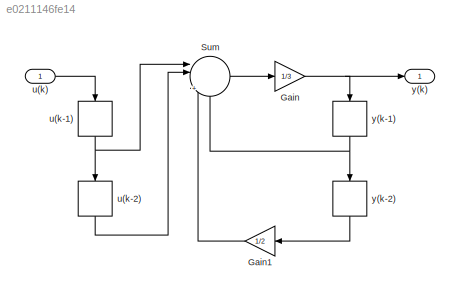
MODEL slx_e0211146fe14
KIND model
CONFIG AbsTol = auto
CONFIG EnableMultiTasking = off
CONFIG FixedStep = auto
CONFIG MaxStep = auto
CONFIG MinStep = auto
CONFIG RelTol = 1e-3
CONFIG SampleTimeConstraint = Unconstrained
CONFIG Solver = VariableStepAuto
CONFIG SolverName = VariableStepAuto
CONFIG StartTime = 0.0
CONFIG StopTime = 10.0
BLOCK [Gain] Gain
  Gain = 1/3
  OutDataTypeStr = Inherit: Inherit via internal rule
  ParamDataTypeStr = Inherit: Inherit via internal rule
  SaturateOnIntegerOverflow = off
BLOCK [Gain] Gain1
  Gain = 1/2
  OutDataTypeStr = Inherit: Inherit via internal rule
  ParamDataTypeStr = Inherit: Inherit via internal rule
  SaturateOnIntegerOverflow = off
BLOCK [Sum] Sum
  IconShape = round
  InputSameDT = off
  Inputs = |||+--+
  OutDataTypeStr = Inherit: Inherit via internal rule
  Ports = [4, 1]
  SaturateOnIntegerOverflow = off
BLOCK [Inport] u(k)
  IconDisplay = Port number
BLOCK [Delay] u(k-1)
  DelayLength = 1
  InputPortMap = u0
  Ports = [1, 1]
BLOCK [Delay] u(k-2)
  DelayLength = 1
  InputPortMap = u0
  Ports = [1, 1]
BLOCK [Outport] y(k)
  IconDisplay = Port number
BLOCK [Delay] y(k-1)
  DelayLength = 1
  InputPortMap = u0
  Ports = [1, 1]
BLOCK [Delay] y(k-2)
  DelayLength = 1
  InputPortMap = u0
  Ports = [1, 1]
LINE Gain1:1 -> Sum:3
NET Gain:1 -> y(k):1, y(k-1):1
LINE Sum:1 -> Gain:1
LINE u(k):1 -> u(k-1):1
NET u(k-1):1 -> Sum:1, u(k-2):1
LINE u(k-2):1 -> Sum:2
NET y(k-1):1 -> Sum:4, y(k-2):1
LINE y(k-2):1 -> Gain1:1
note: NET lines group one-source signal fan-out (src -> all destinations, sorted); 1:1 wires keep LINE
